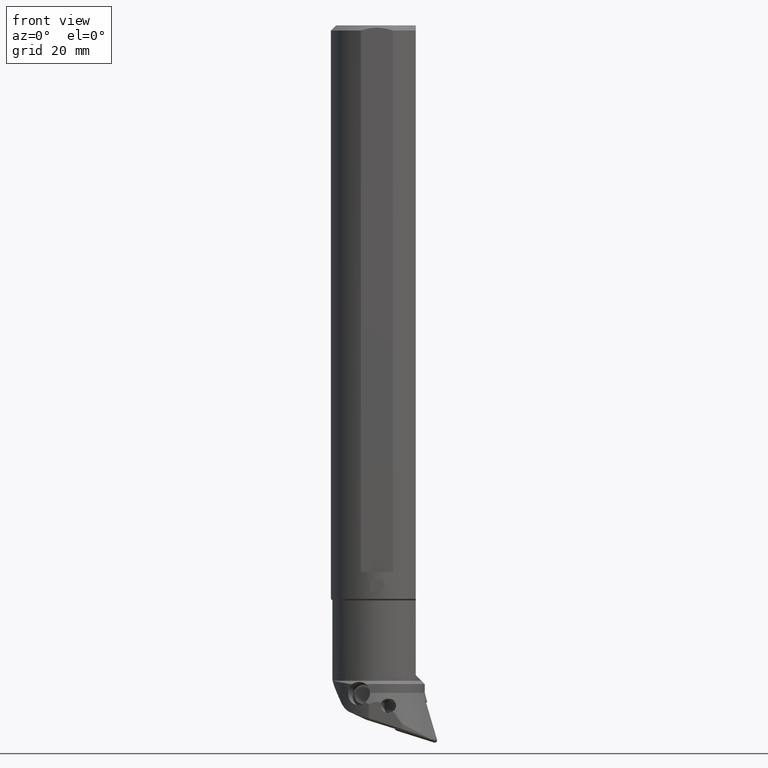
[diagram: clean part render]
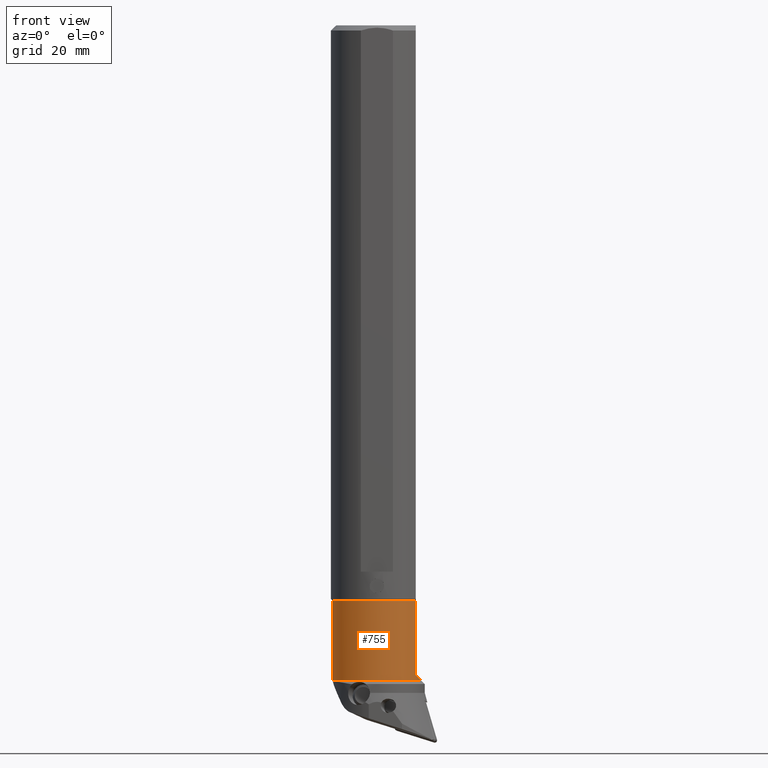
[diagram: same view with one face highlighted and labeled with its STEP entity id]
A machine part, front view. The second image highlights one B-rep face of the part: STEP entity #755.
In plain terms, the highlighted cylindrical surface (partial cylindrical patch) has radius 15.5 mm, axis along (0, 0, -1).
Its self-contained STEP definition (entity closure, byte-faithful):
#209=CYLINDRICAL_SURFACE('',#3934,15.5);
#309=LINE('',#5949,#538);
#310=LINE('',#5955,#539);
#538=VECTOR('',#4522,1.);
#539=VECTOR('',#4527,1.);
#755=ADVANCED_FACE('',(#1000),#209,.T.);
#1000=FACE_OUTER_BOUND('',#1196,.T.);
#1196=EDGE_LOOP('',(#1851,#1852,#1853,#1854,#1855,#1856,#1857,#1858,#1859,
#1860,#1861));
#1394=CIRCLE('',#3928,15.5);
#1395=CIRCLE('',#3930,15.5);
#1396=CIRCLE('',#3931,15.5);
#1397=CIRCLE('',#3933,15.5);
#1547=ELLIPSE('',#3926,31.1707566664405,15.5);
#1548=ELLIPSE('',#3929,21.920310216783,15.5);
#1549=ELLIPSE('',#3932,26.3701750589476,15.5);
#1851=ORIENTED_EDGE('',*,*,#3163,.T.);
#1852=ORIENTED_EDGE('',*,*,#3164,.T.);
#1853=ORIENTED_EDGE('',*,*,#3165,.T.);
#1854=ORIENTED_EDGE('',*,*,#3166,.T.);
#1855=ORIENTED_EDGE('',*,*,#3167,.T.);
#1856=ORIENTED_EDGE('',*,*,#3168,.T.);
#1857=ORIENTED_EDGE('',*,*,#3169,.T.);
#1858=ORIENTED_EDGE('',*,*,#3170,.T.);
#1859=ORIENTED_EDGE('',*,*,#3122,.T.);
#1860=ORIENTED_EDGE('',*,*,#3171,.T.);
#1861=ORIENTED_EDGE('',*,*,#3162,.F.);
#2739=VERTEX_POINT('',#5797);
#2740=VERTEX_POINT('',#5802);
#2762=VERTEX_POINT('',#5933);
#2764=VERTEX_POINT('',#5942);
#2765=VERTEX_POINT('',#5946);
#2766=VERTEX_POINT('',#5948);
#2767=VERTEX_POINT('',#5950);
#2768=VERTEX_POINT('',#5952);
#2769=VERTEX_POINT('',#5954);
#2770=VERTEX_POINT('',#5956);
#2771=VERTEX_POINT('',#5958);
#3122=EDGE_CURVE('',#2740,#2739,#3589,.T.);
#3162=EDGE_CURVE('',#2764,#2762,#1547,.T.);
#3163=EDGE_CURVE('',#2764,#2765,#1394,.T.);
#3164=EDGE_CURVE('',#2765,#2766,#1548,.T.);
#3165=EDGE_CURVE('',#2766,#2767,#309,.T.);
#3166=EDGE_CURVE('',#2767,#2768,#1395,.T.);
#3167=EDGE_CURVE('',#2768,#2769,#1396,.T.);
#3168=EDGE_CURVE('',#2769,#2770,#310,.T.);
#3169=EDGE_CURVE('',#2770,#2771,#1549,.T.);
#3170=EDGE_CURVE('',#2771,#2740,#3603,.T.);
#3171=EDGE_CURVE('',#2739,#2762,#1397,.T.);
#3589=B_SPLINE_CURVE_WITH_KNOTS('',3,(#5798,#5799,#5800,#5801),
 .UNSPECIFIED.,.F.,.F.,(4,4),(0.,1.),.UNSPECIFIED.);
#3603=B_SPLINE_CURVE_WITH_KNOTS('',3,(#5959,#5960,#5961,#5962),
 .UNSPECIFIED.,.F.,.F.,(4,4),(0.,1.),.UNSPECIFIED.);
#3926=AXIS2_PLACEMENT_3D('',#5943,#4514,#4515);
#3928=AXIS2_PLACEMENT_3D('',#5945,#4518,#4519);
#3929=AXIS2_PLACEMENT_3D('',#5947,#4520,#4521);
#3930=AXIS2_PLACEMENT_3D('',#5951,#4523,#4524);
#3931=AXIS2_PLACEMENT_3D('',#5953,#4525,#4526);
#3932=AXIS2_PLACEMENT_3D('',#5957,#4528,#4529);
#3933=AXIS2_PLACEMENT_3D('',#5963,#4530,#4531);
#3934=AXIS2_PLACEMENT_3D('',#5964,#4532,#4533);
#4514=DIRECTION('',(-0.855586122801286,0.143888624907198,-0.497260947684592));
#4515=DIRECTION('',(0.490374666222835,-0.0824690052020836,-0.867601031527638));
#4518=DIRECTION('',(0.,0.,1.));
#4519=DIRECTION('',(-0.994005468072488,-0.109330368342899,0.));
#4520=DIRECTION('',(-0.707106781186548,0.,-0.707106781186548));
#4521=DIRECTION('',(0.707106781186548,0.,-0.707106781186548));
#4522=DIRECTION('',(-1.80724281366697E-7,-6.25073042134889E-8,0.999999999999982));
#4523=DIRECTION('',(0.,0.,-1.));
#4524=DIRECTION('',(0.870967741935495,-0.491340200378297,0.));
#4525=DIRECTION('',(0.,0.,-1.));
#4526=DIRECTION('',(-1.,0.,0.));
#4527=DIRECTION('',(-1.826466753566E-13,7.49973299143498E-8,-0.999999999999997));
#4528=DIRECTION('',(-0.181989225866902,-0.78828194122201,0.587785252291707));
#4529=DIRECTION('',(-0.132222912230815,-0.572720354355272,-0.809016994375504));
#4530=DIRECTION('',(0.,0.,1.));
#4531=DIRECTION('',(-0.778671040139212,0.62743239575951,0.));
#4532=DIRECTION('',(0.,0.,-1.));
#4533=DIRECTION('',(-1.,0.,0.));
#5797=CARTESIAN_POINT('',(-12.06940112216,9.725202134272,-227.9766032809));
#5798=CARTESIAN_POINT('',(-11.62759483732,10.24934331063,-222.1719631539));
#5799=CARTESIAN_POINT('',(-11.78043619625,10.07594904114,-224.1065380063));
#5800=CARTESIAN_POINT('',(-11.92758177279,9.901206148454,-226.041424795));
#5801=CARTESIAN_POINT('',(-12.06940112216,9.725202134273,-227.9766032809));
#5802=CARTESIAN_POINT('',(-11.6275948373314,10.2493433106165,-222.1719631539));
#5933=CARTESIAN_POINT('',(-14.00522893788,6.64105130211614,-227.976603280918));
#5942=CARTESIAN_POINT('',(-15.4070847551289,-1.69462070929536,-227.9766032809));
#5943=CARTESIAN_POINT('',(0.,0.,-253.995640822372));
#5945=CARTESIAN_POINT('',(0.,0.,-227.9766032809));
#5946=CARTESIAN_POINT('',(15.5,5.42101086242752E-17,-227.9766032809));
#5947=CARTESIAN_POINT('',(0.,0.,-212.4766032809));
#5948=CARTESIAN_POINT('',(13.4999999999999,-7.61577310586403,-225.9766032809));
#5949=CARTESIAN_POINT('',(13.5,-7.615773105864,-225.9766032809));
#5950=CARTESIAN_POINT('',(13.4999976526988,-7.61577391772757,-200.000001645537));
#5951=CARTESIAN_POINT('',(0.,0.,-200.));
#5952=CARTESIAN_POINT('',(-15.5,0.,-200.));
#5953=CARTESIAN_POINT('',(0.,0.,-200.));
#5954=CARTESIAN_POINT('',(13.5,7.61577254057656,-200.000000277763));
#5955=CARTESIAN_POINT('',(13.5,7.615771975289,-199.9999977009));
#5956=CARTESIAN_POINT('',(13.5000000000229,7.61577310582325,-215.074748422165));
#5957=CARTESIAN_POINT('',(0.,0.,-229.46815302697));
#5958=CARTESIAN_POINT('',(-9.60801917823994,12.1628930551318,-216.131253291079));
#5959=CARTESIAN_POINT('',(-9.60801917826432,12.1628930551397,-216.131253291049));
#5960=CARTESIAN_POINT('',(-10.8244878214471,11.2019494703798,-217.796621139676));
#5961=CARTESIAN_POINT('',(-11.4492302676413,10.4516929526227,-219.91433070675));
#5962=CARTESIAN_POINT('',(-11.6275948373762,10.249343310565,-222.17196315389));
#5963=CARTESIAN_POINT('',(0.,0.,-227.9766032809));
#5964=CARTESIAN_POINT('',(0.,0.,-199.4404679344));